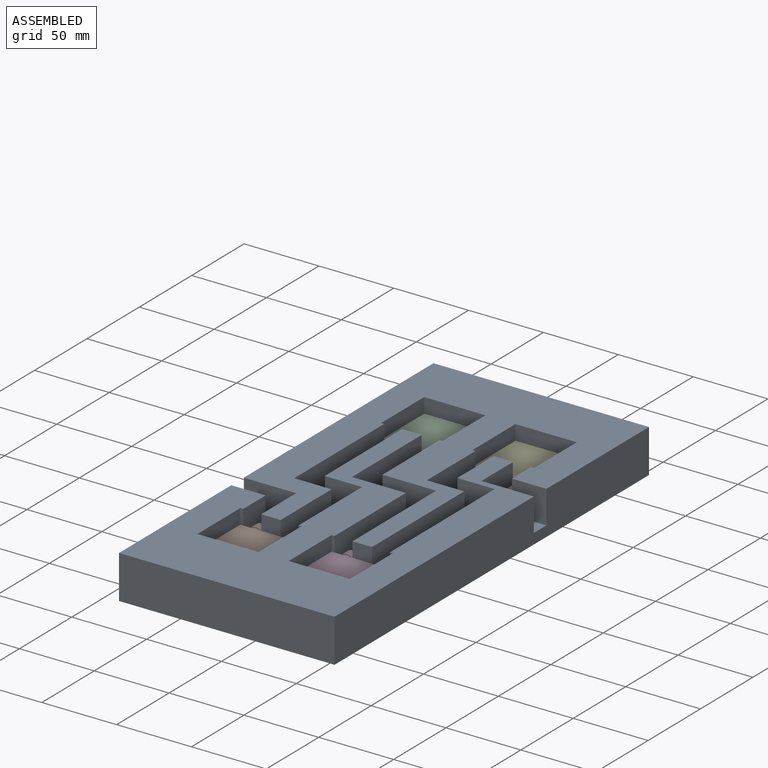
[diagram: assembled view]
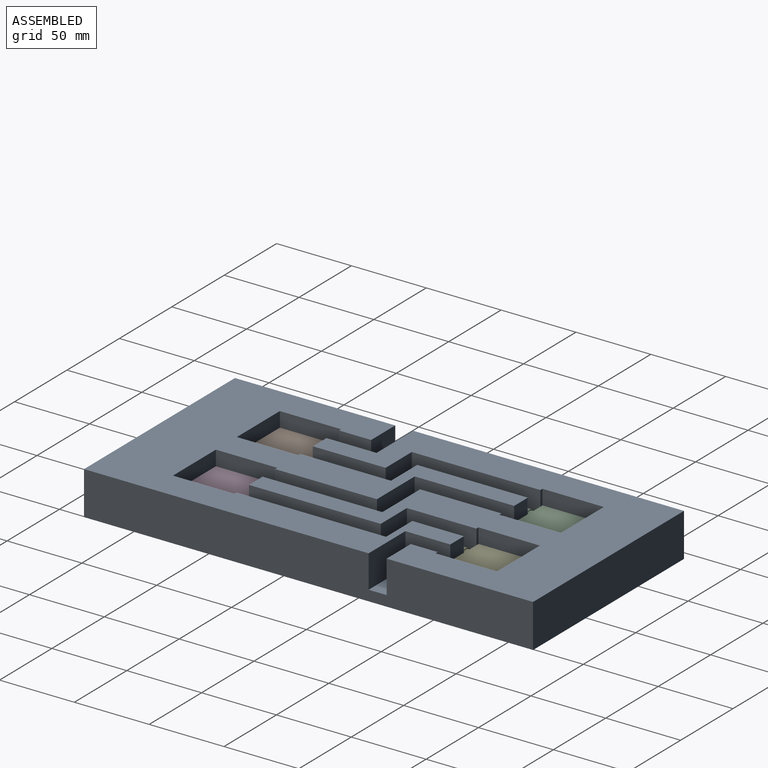
[diagram: assembled view, second angle]
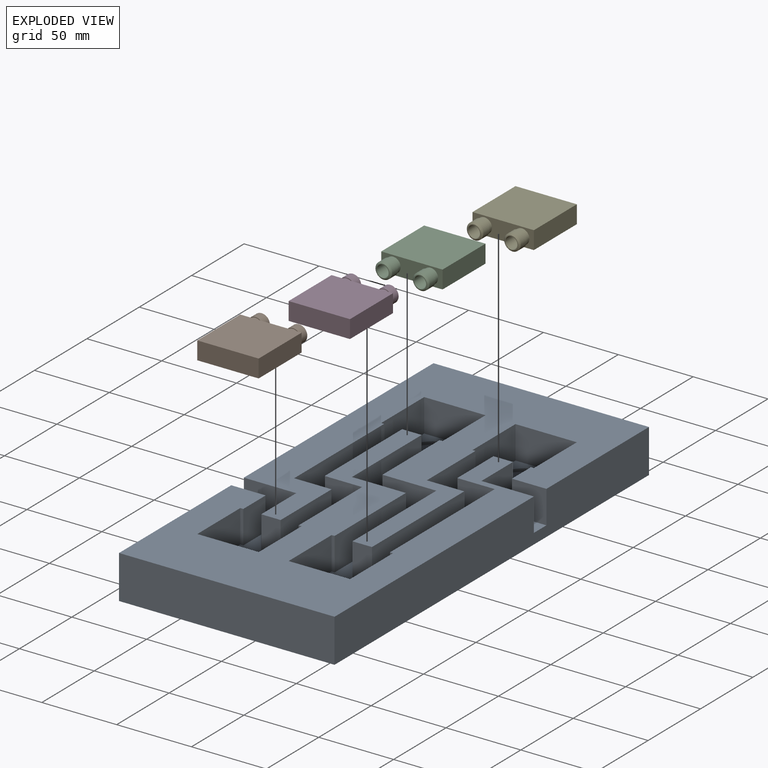
[diagram: exploded view]
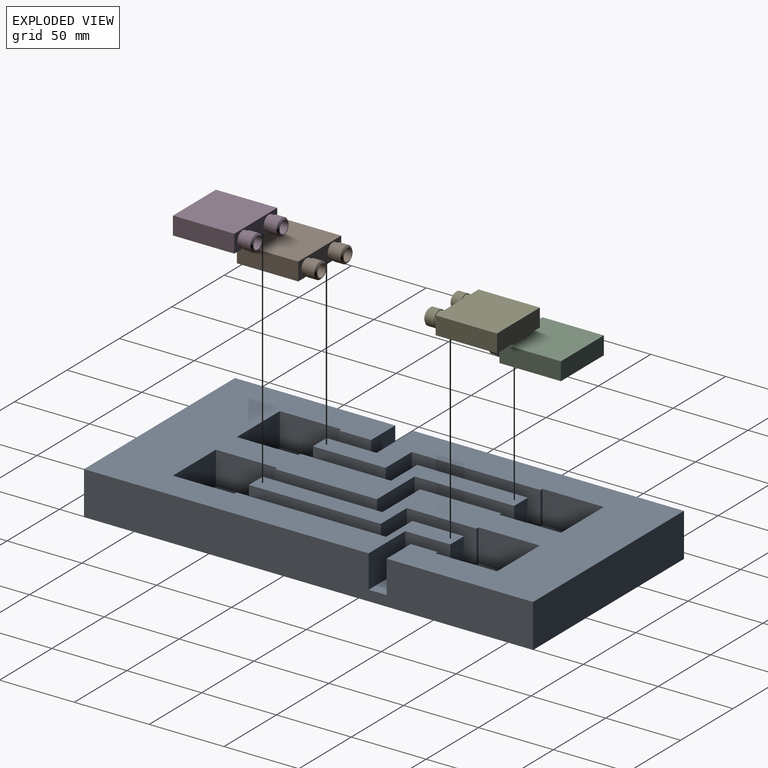
[diagram: exploded view, second angle]
ASSEMBLY  parts=5 mates=4
PART A: 70 faces, bbox 300x144x29 mm
  f0: plane 216.47x144mm, normal (0,0,1), area 9608.8mm2, adj f2,f4,f5,f6,f7,f8,f10,f11
  f1: plane 144x29mm, normal (1,0,0), area 4176mm2, adj f2,f7,f9,f61
  f2: plane 300x29mm, normal (0,1,0), area 8436mm2, adj f0,f1,f3,f9,f12,f35,f37,f61
  f3: plane 144x29mm, normal (-1,0,0), area 4176mm2, adj f2,f7,f9,f35
  f4: cylinder r=18.5mm len=37mm, axis (0,0,-1), area 232.5mm2, adj f0,f69
  f5: cylinder r=18.5mm len=37mm, axis (0,0,-1), area 232.5mm2, adj f0,f67
  f6: cylinder r=18.5mm len=37mm, axis (0,0,-1), area 232.5mm2, adj f0,f63
  f7: plane 300x29mm, normal (0,-1,0), area 8436mm2, adj f0,f1,f3,f9,f13,f35,f36,f61
  f8: cylinder r=18.5mm len=37mm, axis (0,0,-1), area 232.5mm2, adj f0,f65
  f9: plane 300x144mm, normal (0,0,-1), area 41943.4mm2, adj f1,f2,f3,f7,f62,f64,f66,f68
  f10: plane 22x2mm, normal (-1,0,0), area 44mm2, adj f0,f11,f34,f35
  f11: plane 22x18mm, normal (0,-1,0), area 396mm2, adj f0,f10,f12,f35
  f12: plane 23x22mm, normal (1,0,0), area 506mm2, adj f0,f2,f11,f35
  f13: plane 35x22mm, normal (1,0,0), area 770mm2, adj f0,f7,f14,f35
  f14: plane 33.39x22mm, normal (0,-1,0), area 734.6mm2, adj f0,f13,f15,f35
  f15: plane 22x13mm, normal (1,0,0), area 286mm2, adj f0,f14,f16,f35
  f16: plane 48.56x22mm, normal (0,1,0), area 1068.4mm2, adj f0,f15,f17,f35
  f17: plane 25x22mm, normal (-1,0,0), area 550mm2, adj f0,f16,f18,f35
  f18: plane 85.91x22mm, normal (0,1,0), area 1890mm2, adj f0,f17,f19,f35
  f19: plane 22x2mm, normal (-1,0,0), area 44mm2, adj f0,f18,f20,f35
  f20: plane 41x22mm, normal (0,1,0), area 902mm2, adj f0,f19,f21,f35
  f21: plane 41x22mm, normal (1,0,0), area 902mm2, adj f0,f20,f22,f35
  f22: plane 41x22mm, normal (0,-1,0), area 902mm2, adj f0,f21,f23,f35
  f23: plane 22x2mm, normal (-1,0,0), area 44mm2, adj f0,f22,f24,f35
  f24: plane 54.47x22mm, normal (0,-1,0), area 1198.3mm2, adj f0,f23,f25,f35
  f25: plane 36x22mm, normal (1,0,0), area 792mm2, adj f0,f24,f26,f35
  f26: plane 80x22mm, normal (0,-1,0), area 1760mm2, adj f0,f25,f27,f35
  f27: plane 22x13mm, normal (1,0,0), area 286mm2, adj f0,f26,f28,f35
  f28: plane 88x22mm, normal (0,1,0), area 1936mm2, adj f0,f27,f29,f35
  f29: plane 25x22mm, normal (-1,0,0), area 550mm2, adj f0,f28,f30,f35
  f30: plane 46.47x22mm, normal (0,1,0), area 1022.3mm2, adj f0,f29,f31,f35
  f31: plane 22x2mm, normal (-1,0,0), area 44mm2, adj f0,f30,f32,f35
  f32: plane 41x22mm, normal (0,1,0), area 902mm2, adj f0,f31,f33,f35
  f33: plane 41x22mm, normal (1,0,0), area 902mm2, adj f0,f32,f34,f35
  f34: plane 41x22mm, normal (0,-1,0), area 902mm2, adj f0,f10,f33,f35
  f35: plane 214.3x144mm, normal (0,0,1), area 14233.6mm2, adj f2,f3,f7,f10,f11,f12,f13,f14
  f36: plane 23x22mm, normal (-1,0,0), area 506mm2, adj f0,f7,f60,f61
  f37: plane 35x22mm, normal (-1,0,0), area 770mm2, adj f0,f2,f38,f61
  f38: plane 30x22mm, normal (0,1,0), area 660mm2, adj f0,f37,f39,f61
  f39: plane 22x13mm, normal (-1,0,0), area 286mm2, adj f0,f38,f40,f61
  f40: plane 34.47x22mm, normal (0,-1,0), area 758.3mm2, adj f0,f39,f41,f61
  f41: plane 25x22mm, normal (1,0,0), area 550mm2, adj f0,f40,f42,f61
  f42: plane 100x22mm, normal (0,-1,0), area 2200mm2, adj f0,f41,f43,f61
  f43: plane 22x2mm, normal (1,0,0), area 44mm2, adj f0,f42,f44,f61
  f44: plane 41x22mm, normal (0,-1,0), area 902mm2, adj f0,f43,f45,f61
  f45: plane 41x22mm, normal (-1,0,0), area 902mm2, adj f0,f44,f46,f61
  f46: plane 41x22mm, normal (0,1,0), area 902mm2, adj f0,f45,f47,f61
  f47: plane 22x2mm, normal (1,0,0), area 44mm2, adj f0,f46,f48,f61
  f48: plane 68x22mm, normal (0,1,0), area 1496mm2, adj f0,f47,f49,f61
  f49: plane 36x22mm, normal (-1,0,0), area 792mm2, adj f0,f48,f50,f61
  f50: plane 66.47x22mm, normal (0,1,0), area 1462.3mm2, adj f0,f49,f51,f61
  f51: plane 22x13mm, normal (-1,0,0), area 286mm2, adj f0,f50,f52,f61
  f52: plane 73.91x22mm, normal (0,-1,0), area 1626mm2, adj f0,f51,f53,f61
  f53: plane 25x22mm, normal (1,0,0), area 550mm2, adj f0,f52,f54,f61
  f54: plane 60.56x22mm, normal (0,-1,0), area 1332.4mm2, adj f0,f53,f55,f61
  f55: plane 22x2mm, normal (1,0,0), area 44mm2, adj f0,f54,f56,f61
  f56: plane 41x22mm, normal (0,-1,0), area 902mm2, adj f0,f55,f57,f61
  f57: plane 41x22mm, normal (-1,0,0), area 902mm2, adj f0,f56,f58,f61
  f58: plane 41x22mm, normal (0,1,0), area 902mm2, adj f0,f57,f59,f61
  f59: plane 22x2mm, normal (1,0,0), area 44mm2, adj f0,f58,f60,f61
  f60: plane 22x21.39mm, normal (0,1,0), area 470.6mm2, adj f0,f36,f59,f61
  f61: plane 220.17x144mm, normal (0,0,1), area 15056.8mm2, adj f1,f2,f7,f36,f37,f38,f39,f40
  f62: cylinder r=10mm len=20mm, axis (0,0,-1), area 314.2mm2, adj f9,f63
  f63: plane 37x37mm, normal (0,0,1), area 761.1mm2, adj f6,f62
  f64: cylinder r=10mm len=20mm, axis (0,0,-1), area 314.2mm2, adj f9,f65
  f65: plane 37x37mm, normal (0,0,1), area 761.1mm2, adj f8,f64
  f66: cylinder r=10mm len=20mm, axis (0,0,-1), area 314.2mm2, adj f9,f67
  f67: plane 37x37mm, normal (0,0,1), area 761.1mm2, adj f5,f66
  f68: cylinder r=10mm len=20mm, axis (0,0,-1), area 314.2mm2, adj f9,f69
  f69: plane 37x37mm, normal (0,0,1), area 761.1mm2, adj f4,f68
PART B: 20 faces, bbox 41x51x12 mm
  f0: cylinder r=5mm len=10mm, axis (0,1,0), area 94.2mm2, adj f3,f14
  f1: cylinder r=5mm len=10mm, axis (0,1,0), area 94.2mm2, adj f3,f9
  f2: plane 41x12mm, normal (-1,0,0), area 492mm2, adj f3,f5,f6,f7
  f3: plane 41x12mm, normal (0,-1,0), area 334.9mm2, adj f0,f1,f2,f4,f6,f7
  f4: plane 41x12mm, normal (1,0,0), area 492mm2, adj f3,f5,f6,f7
  f5: plane 41x12mm, normal (0,1,0), area 492mm2, adj f2,f4,f6,f7
  f6: plane 41x41mm, normal (0,0,1), area 1681mm2, adj f2,f3,f4,f5
  f7: plane 41x41mm, normal (0,0,-1), area 1681mm2, adj f2,f3,f4,f5
  f8: cylinder r=5.5mm len=11mm, axis (0,1,0), area 207.3mm2, adj f9,f19
  f9: plane 11x11mm, normal (0,1,0), area 16.5mm2, adj f1,f8
  f10: plane 8x8mm, normal (0,-1,0), area 50.3mm2, adj f11
  f11: cylinder r=4mm len=10mm, axis (0,1,0), area 251.3mm2, adj f10,f12
  f12: plane 9x9mm, normal (0,-1,0), area 13.4mm2, adj f11,f19
  f13: cylinder r=5.5mm len=11mm, axis (0,1,0), area 207.3mm2, adj f14,f18
  f14: plane 11x11mm, normal (0,1,0), area 16.5mm2, adj f0,f13
  f15: plane 8x8mm, normal (0,-1,0), area 50.3mm2, adj f16
  f16: cylinder r=4mm len=10mm, axis (0,1,0), area 251.3mm2, adj f15,f17
  f17: plane 9x9mm, normal (0,-1,0), area 13.4mm2, adj f16,f18
  f18: cone r=4.5mm half-angle=45deg, axis (0,1,0), area 44.4mm2, adj f13,f17
  f19: cone r=4.5mm half-angle=45deg, axis (0,1,0), area 44.4mm2, adj f8,f12
PART C: same geometry as B
PART D: same geometry as B
PART E: same geometry as B
PLACE A rot(axis=(0,0,-1),90deg) t=(15.43,73.05,-46.22)mm
PLACE B rot(axis=(1,0,0),180deg) t=(36.43,-141.25,-27.22)mm
PLACE C rot(axis=(0,1,0),180deg) t=(77.43,-6.78,-27.22)mm
PLACE D rot(axis=(0,0,1),180deg) t=(138.43,-141.25,-39.22)mm
PLACE E rot(axis=(0,1,0),180deg) t=(138.43,-6.78,-27.22)mm
MATE planar C.f6 <-> A.f0  axis (0,0,-1) through (56.93,34.22,-39.22)mm
MATE planar E.f6 <-> A.f0  axis (0,0,-1) through (117.93,34.22,-39.22)mm
MATE planar B.f6 <-> A.f0  axis (0,0,-1) through (56.93,-182.25,-39.22)mm
MATE planar D.f7 <-> A.f0  axis (0,0,-1) through (117.93,-182.25,-39.22)mm
